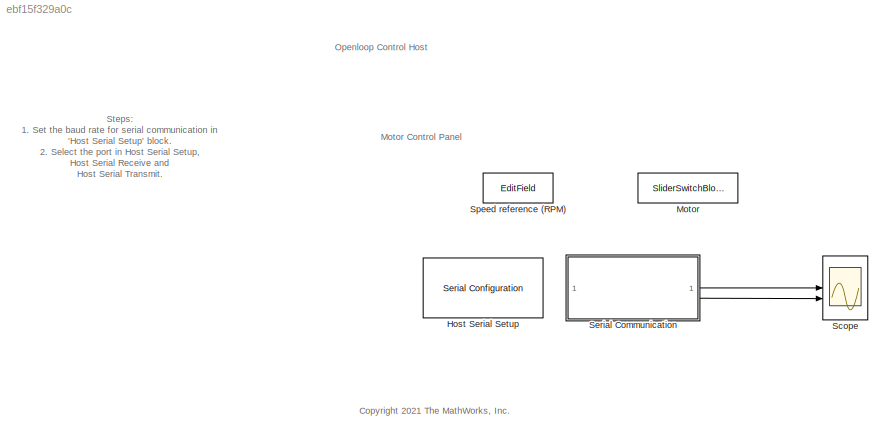
MODEL slx_ebf15f329a0c
KIND model
CONFIG AbsTol = auto
CONFIG EnableMultiTasking = off
CONFIG FixedStep = auto
CONFIG MaxStep = auto
CONFIG MinStep = auto
CONFIG RelTol = 1e-3
CONFIG SampleTimeConstraint = Unconstrained
CONFIG SolverName = FixedStepDiscrete
CONFIG StartTime = 0.0
CONFIG StopTime = Inf
BLOCK [Reference] Host Serial Setup  REF=instrumentseriallib/Serial Configuration
  Priority = -99
  SourceBlock = instrumentseriallib/Serial Configuration
  SourceType = system.SerialConfiguration
BLOCK [SliderSwitchBlock] Motor
  LabelPosition = Hide
BLOCK [Scope] Scope
  Floating = off
  NumInputPorts = 2
  ScopeSpecificationString = Simulink.scopes.TimeScopeBlockCfg('CurrentConfiguration', extmgr.ConfigurationSet(extmgr.Configuration('Core','General UI',true),extmgr.Configuration('Core','Source UI',true),extmgr.Configuration('Sources','WiredSimulink',true),extmgr.Configuration('Visuals','Time Domain',true,'InputProcessing','FrameProcessing','TimeAxisLabels','All','SerializedDisplays',{struct('MinYLimReal','1744.75','MaxYLimRe...<+2354ch>
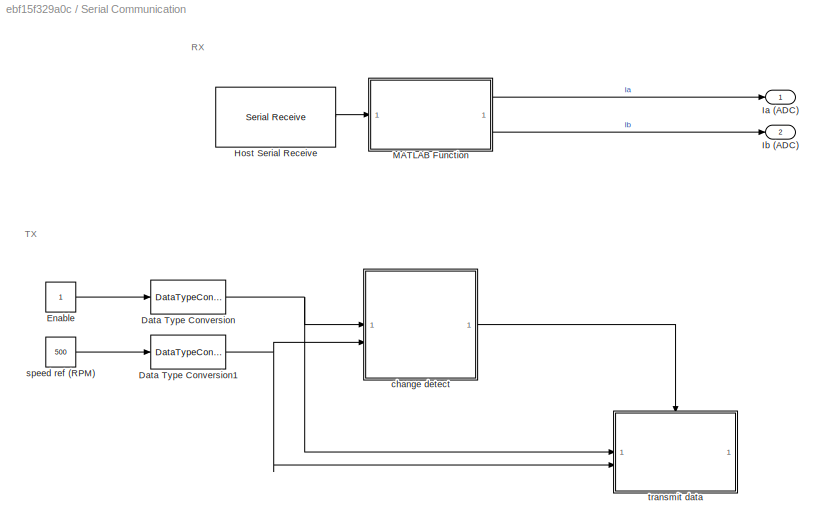
BLOCK [SubSystem] Serial Communication
BLOCK [DataTypeConversion] Serial Communication/Data Type Conversion
  OutDataTypeStr = single
  RndMeth = Floor
  SaturateOnIntegerOverflow = off
BLOCK [DataTypeConversion] Serial Communication/Data Type Conversion1
  LockScale = on
  OutDataTypeStr = single
  RndMeth = Floor
  SaturateOnIntegerOverflow = off
BLOCK [Constant] Serial Communication/Enable
  OutDataTypeStr = boolean
  SampleTime = -1
BLOCK [Reference] Serial Communication/Host Serial Receive  REF=instrumentseriallib/Serial Receive
  SourceBlock = instrumentseriallib/Serial Receive
  SourceType = system.SerialReceive
BLOCK [Outport] Serial Communication/Ia (ADC)
BLOCK [Outport] Serial Communication/Ib (ADC)
  Port = 2
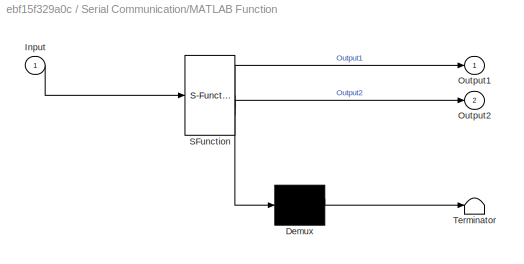
BLOCK [SubSystem] Serial Communication/MATLAB Function
  ErrorFcn = Stateflow.Translate.translate
  PermitHierarchicalResolution = ExplicitOnly
  SFBlockType = MATLAB Function
  TreatAsAtomicUnit = on
BLOCK [Demux] Serial Communication/MATLAB Function/ Demux 
  Outputs = 1
BLOCK [S-Function] Serial Communication/MATLAB Function/ SFunction 
  EnableBusSupport = on
  FunctionName = sf_sfun
  PortCounts = [1 3]
  SFcnIsStateOwnerBlock = off
  SFunctionDeploymentMode = off
  Tag = Stateflow S-Function 3
BLOCK [Terminator] Serial Communication/MATLAB Function/ Terminator 
BLOCK [Inport] Serial Communication/MATLAB Function/Input
BLOCK [Outport] Serial Communication/MATLAB Function/Output1
BLOCK [Outport] Serial Communication/MATLAB Function/Output2
  Port = 2
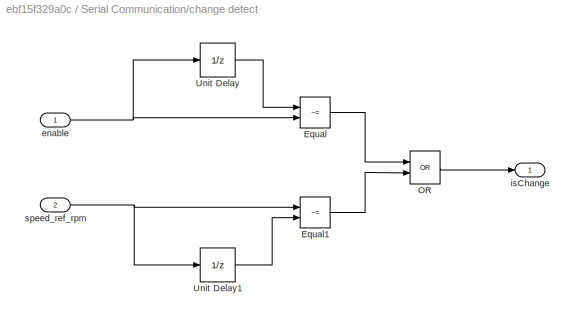
BLOCK [SubSystem] Serial Communication/change detect
  NameLocation = top
BLOCK [RelationalOperator] Serial Communication/change detect/Equal
  InputSameDT = off
  Operator = ~=
  OutDataTypeStr = boolean
  RndMeth = Simplest
BLOCK [RelationalOperator] Serial Communication/change detect/Equal1
  InputSameDT = off
  Operator = ~=
  OutDataTypeStr = boolean
  RndMeth = Simplest
BLOCK [Logic] Serial Communication/change detect/OR
  AllPortsSameDT = off
  Operator = OR
  OutDataTypeStr = boolean
BLOCK [UnitDelay] Serial Communication/change detect/Unit Delay
  HasFrameUpgradeWarning = on
  SampleTime = -1
BLOCK [UnitDelay] Serial Communication/change detect/Unit Delay1
  HasFrameUpgradeWarning = on
  SampleTime = -1
BLOCK [Inport] Serial Communication/change detect/enable
BLOCK [Outport] Serial Communication/change detect/isChange
BLOCK [Inport] Serial Communication/change detect/speed_ref_rpm
  Port = 2
BLOCK [Constant] Serial Communication/speed ref (RPM)
  OutDataTypeStr = single
  SampleTime = -1
  Value = 500
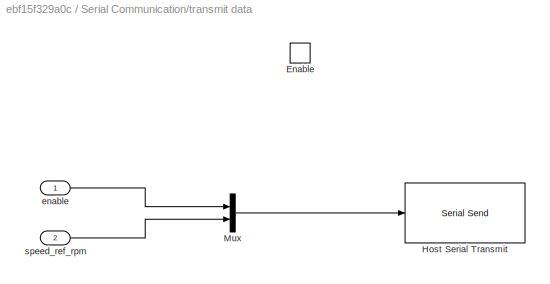
BLOCK [SubSystem] Serial Communication/transmit data
  TreatAsAtomicUnit = on
BLOCK [EnablePort] Serial Communication/transmit data/Enable
BLOCK [Reference] Serial Communication/transmit data/Host Serial Transmit  REF=instrumentseriallib/Serial Send
  SourceBlock = instrumentseriallib/Serial Send
  SourceType = system.SerialSend
BLOCK [Mux] Serial Communication/transmit data/Mux
  DisplayOption = bar
  Inputs = 2
BLOCK [Inport] Serial Communication/transmit data/enable
BLOCK [Inport] Serial Communication/transmit data/speed_ref_rpm
  Port = 2
BLOCK [EditField] Speed reference (RPM)
  Alignment = Center
  LabelPosition = Hide
  ShowInitialText = on
ANNOTATION (root): Openloop Control Host
ANNOTATION (root): <copyright redacted>
ANNOTATION (root): Steps: 1. Set the baud rate for serial communication in 'Host Serial Setup' block. 2. Select the port in Host Serial Setup , Host Serial Receive and Host Serial Transmit . 3. Use ' Motor Start / Stop ' switch to control the motor. 4. Enter speed request in RPM using 'Speed Reference' edit box. Limit the reference speed to half of the rated speed. 5. Observe the ADC counts for phase current measure...<+12ch>
ANNOTATION (root): Motor Control Panel
ANNOTATION Serial Communication: RX
ANNOTATION Serial Communication: TX
NET Serial Communication/Data Type Conversion1:1 -> Serial Communication/change detect:2, Serial Communication/transmit data:2
NET Serial Communication/Data Type Conversion:1 -> Serial Communication/change detect:1, Serial Communication/transmit data:1
LINE Serial Communication/Enable:1 -> Serial Communication/Data Type Conversion:1
LINE Serial Communication/Host Serial Receive:1 -> Serial Communication/MATLAB Function:1
LINE Serial Communication/MATLAB Function:1 -> Serial Communication/Ia (ADC):1
LINE Serial Communication/MATLAB Function:2 -> Serial Communication/Ib (ADC):1
LINE Serial Communication/change detect/Equal1:1 -> Serial Communication/change detect/OR:2
LINE Serial Communication/change detect/Equal:1 -> Serial Communication/change detect/OR:1
LINE Serial Communication/change detect/OR:1 -> Serial Communication/change detect/isChange:1
LINE Serial Communication/change detect/Unit Delay1:1 -> Serial Communication/change detect/Equal1:2
LINE Serial Communication/change detect/Unit Delay:1 -> Serial Communication/change detect/Equal:1
NET Serial Communication/change detect/enable:1 -> Serial Communication/change detect/Equal:2, Serial Communication/change detect/Unit Delay:1
NET Serial Communication/change detect/speed_ref_rpm:1 -> Serial Communication/change detect/Equal1:1, Serial Communication/change detect/Unit Delay1:1
LINE Serial Communication/change detect:1 -> Serial Communication/transmit data:enable
LINE Serial Communication/speed ref (RPM):1 -> Serial Communication/Data Type Conversion1:1
LINE Serial Communication/transmit data/Mux:1 -> Serial Communication/transmit data/Host Serial Transmit:1
LINE Serial Communication/transmit data/enable:1 -> Serial Communication/transmit data/Mux:1
LINE Serial Communication/transmit data/speed_ref_rpm:1 -> Serial Communication/transmit data/Mux:2
LINE Serial Communication:1 -> Scope:1
LINE Serial Communication:2 -> Scope:2
note: NET lines group one-source signal fan-out (src -> all destinations, sorted); 1:1 wires keep LINE
CHART Serial Communication/MATLAB Function states=1 transitions=1
  STATE_LABEL 'eML_blk_kernel()'
  STATE_LABEL 'SCRIPT:\nfunction [ Output1, Output2] = unBuf(Input)\n\nOutput1 = Input(:, 1);\nOutput2 = Input(:, 2);\nend'
CHART  states=0 transitions=0
